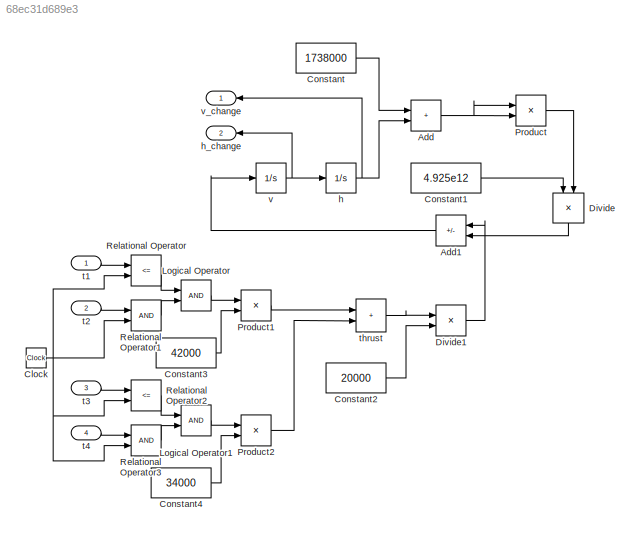
MODEL slx_68ec31d689e3
KIND model
CONFIG AbsTol = auto
CONFIG EnableMultiTasking = off
CONFIG FixedStep = 0.1
CONFIG MaxStep = auto
CONFIG MinStep = auto
CONFIG RelTol = 1e-3
CONFIG SampleTimeConstraint = Unconstrained
CONFIG SolverName = ode8
CONFIG StartTime = 0.0
CONFIG StopTime = 100
BLOCK [Sum] Add
  IconShape = rectangular
BLOCK [Sum] Add1
  IconShape = rectangular
  Inputs = +-
BLOCK [Clock] Clock
BLOCK [Constant] Constant
  Value = 1738000
BLOCK [Constant] Constant1
  Value = 4.925e12
BLOCK [Constant] Constant2
  Value = 20000
BLOCK [Constant] Constant3
  Value = 42000
BLOCK [Constant] Constant4
  Value = 34000
BLOCK [Product] Divide
  Inputs = */
  NameLocation = left
BLOCK [Product] Divide1
  Inputs = */
BLOCK [Logic] Logical Operator
  AllPortsSameDT = off
  OutDataTypeStr = boolean
BLOCK [Logic] Logical Operator1
  AllPortsSameDT = off
  OutDataTypeStr = boolean
BLOCK [Product] Product
BLOCK [Product] Product1
BLOCK [Product] Product2
BLOCK [RelationalOperator] Relational Operator
  InputSameDT = off
  Operator = <=
  OutDataTypeStr = boolean
  RndMeth = Simplest
BLOCK [RelationalOperator] Relational Operator1
  InputSameDT = off
  OutDataTypeStr = boolean
  RndMeth = Simplest
BLOCK [RelationalOperator] Relational Operator2
  InputSameDT = off
  Operator = <=
  OutDataTypeStr = boolean
  RndMeth = Simplest
BLOCK [RelationalOperator] Relational Operator3
  InputSameDT = off
  OutDataTypeStr = boolean
  RndMeth = Simplest
BLOCK [Integrator] h
  InitialCondition = 1000
BLOCK [Outport] h_change
  Port = 2
BLOCK [Inport] t1
BLOCK [Inport] t2
  Port = 2
BLOCK [Inport] t3
  Port = 3
BLOCK [Inport] t4
  Port = 4
BLOCK [Sum] thrust
  IconShape = rectangular
BLOCK [Integrator] v
  InitialCondition = -10
BLOCK [Outport] v_change
LINE Add1:1 -> v:1
NET Add:1 -> Product:1, Product:2
NET Clock:1 -> Relational Operator1:2, Relational Operator2:2, Relational Operator3:2, Relational Operator:2
LINE Constant1:1 -> Divide:1
LINE Constant2:1 -> Divide1:2
LINE Constant3:1 -> Product1:2
LINE Constant4:1 -> Product2:2
LINE Constant:1 -> Add:1
LINE Divide1:1 -> Add1:1
LINE Divide:1 -> Add1:2
LINE Logical Operator1:1 -> Product2:1
LINE Logical Operator:1 -> Product1:1
LINE Product1:1 -> thrust:1
LINE Product2:1 -> thrust:2
LINE Product:1 -> Divide:2
LINE Relational Operator1:1 -> Logical Operator:2
LINE Relational Operator2:1 -> Logical Operator1:1
LINE Relational Operator3:1 -> Logical Operator1:2
LINE Relational Operator:1 -> Logical Operator:1
NET h:1 -> Add:2, v_change:1
LINE t1:1 -> Relational Operator:1
LINE t2:1 -> Relational Operator1:1
LINE t3:1 -> Relational Operator2:1
LINE t4:1 -> Relational Operator3:1
LINE thrust:1 -> Divide1:1
NET v:1 -> h:1, h_change:1
note: NET lines group one-source signal fan-out (src -> all destinations, sorted); 1:1 wires keep LINE
